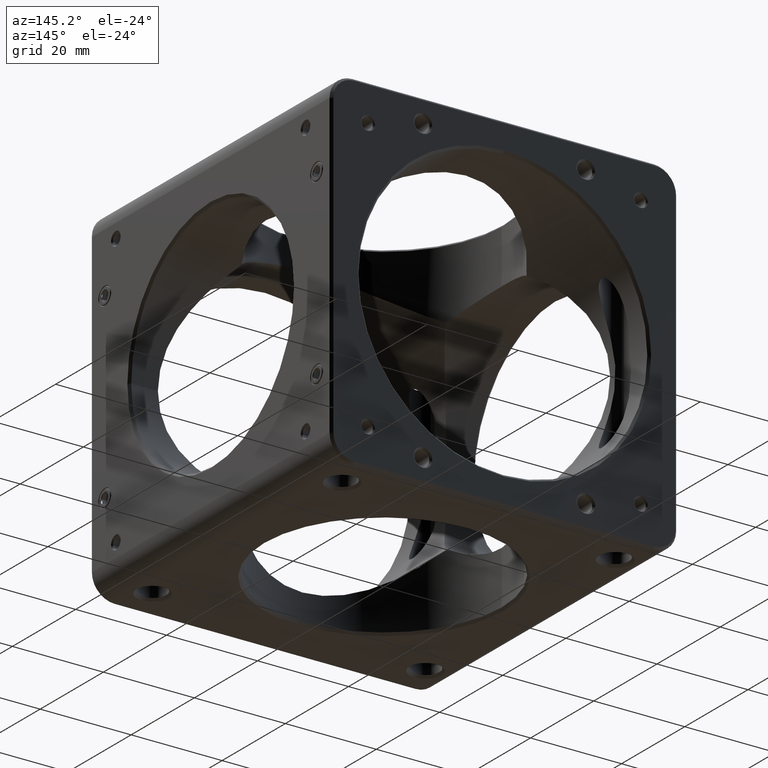
[diagram: clean part render]
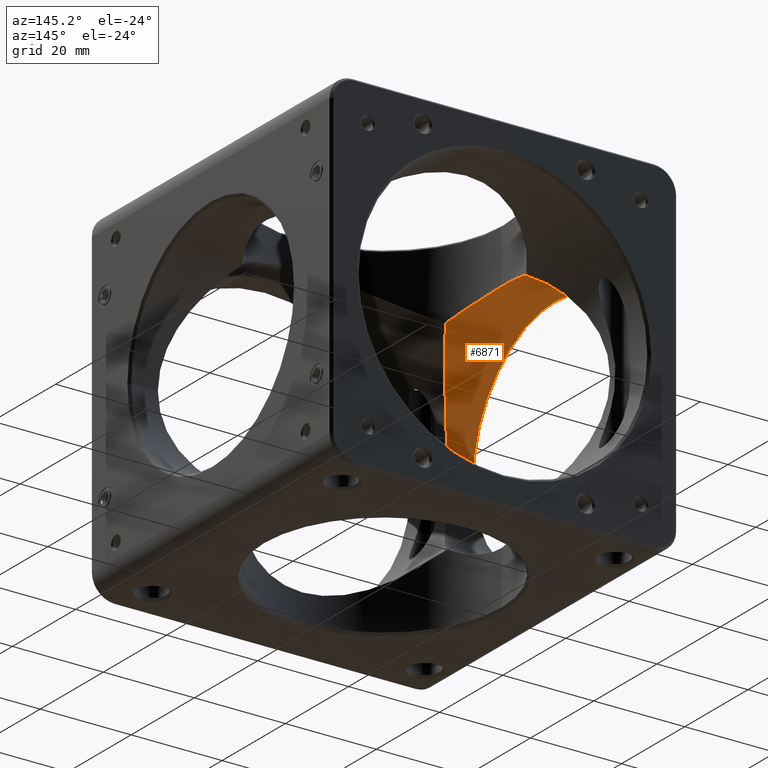
[diagram: same view with one face highlighted and labeled with its STEP entity id]
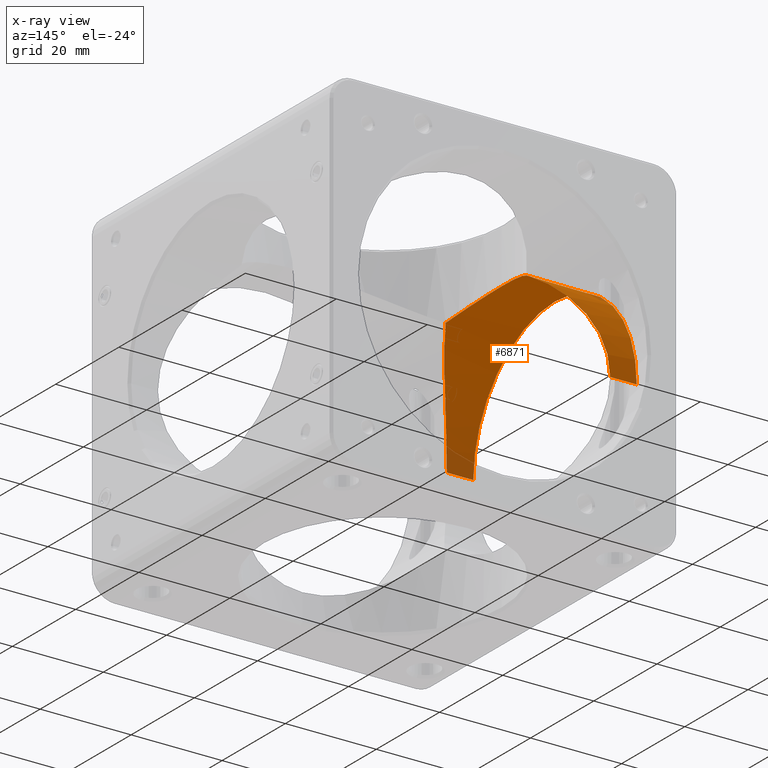
[diagram: x-ray of the same camera — body ghosted, the highlighted face saturated]
A machine part, auxiliary view. The second image highlights one B-rep face of the part: STEP entity #6871.
The next image is the same camera in x-ray: the body ghosted, the highlighted face saturated — about 5% of this face is hidden behind the body in this view.
In plain terms, the highlighted cylindrical surface (partial cylindrical patch) has radius 25.845 mm, axis along (1, 0, -0).
Its self-contained STEP definition (entity closure, byte-faithful):
#51 = CARTESIAN_POINT ( 'NONE',  ( -37.60000000000003695, 25.84499999999998465, 3.195715822375015789E-15 ) ) ;
#207 = CARTESIAN_POINT ( 'NONE',  ( -25.20073562820388346, -17.17765486716805512, 19.31802685337201098 ) ) ;
#253 = DIRECTION ( 'NONE',  ( 1.000000000000000000, 8.673617379884035472E-17, -0.0000000000000000000 ) ) ;
#289 = CARTESIAN_POINT ( 'NONE',  ( -30.67933889915975243, -24.51858729177961749, 8.258518583595494178 ) ) ;
#460 = CARTESIAN_POINT ( 'NONE',  ( -30.66518061214475566, 24.50039439633872718, 8.248455638101575005 ) ) ;
#725 = DIRECTION ( 'NONE',  ( 1.000000000000000000, 8.673617379884035472E-17, -0.0000000000000000000 ) ) ;
#901 = FACE_OUTER_BOUND ( 'NONE', #8414, .T. ) ;
#1211 = CARTESIAN_POINT ( 'NONE',  ( -22.45064030267288047, -12.80362351055356562, 22.45064030267289468 ) ) ;
#1275 = B_SPLINE_CURVE_WITH_KNOTS ( 'NONE', 3,
 ( #11073, #2858, #8302, #2032, #4794, #1494, #460, #4276, #10467, #7345, #9555, #12206, #11545, #12204, #8530, #9364, #6642, #3741, #12189, #8348, #9212, #11113, #10265, #6417 ),
 .UNSPECIFIED., .F., .F.,
 ( 4, 2, 2, 2, 2, 2, 2, 2, 2, 2, 2, 4 ),
 ( 0.0000000000000000000, 0.003613194780048903203, 0.007226389560097806405, 0.009032986950122258440, 0.01083958434014670874, 0.01445277912019561455, 0.01625937651022007352, 0.01806597390024453076, 0.02167916868029345565, 0.02348576607031791982, 0.02529236346034237706, 0.02890555824039128807 ),
 .UNSPECIFIED. ) ;
#1494 = CARTESIAN_POINT ( 'NONE',  ( -30.81147438359403878, 24.68315316707647611, 7.685172328598835811 ) ) ;
#1615 = VERTEX_POINT ( 'NONE', #4684 ) ;
#1771 = EDGE_CURVE ( 'NONE', #6288, #5005, #5755, .T. ) ;
#2032 = CARTESIAN_POINT ( 'NONE',  ( -31.40791991316456588, 25.42377880451287808, 4.798713425435072288 ) ) ;
#2110 = CARTESIAN_POINT ( 'NONE',  ( -26.82006618202550641, -19.47896384064399555, 17.02134277776624671 ) ) ;
#2113 = CARTESIAN_POINT ( 'NONE',  ( -38.10000000000001563, 25.84499999999998465, 0.0000000000000000000 ) ) ;
#2214 = DIRECTION ( 'NONE',  ( -1.000000000000000000, -8.673617379883828396E-17, -0.0000000000000000000 ) ) ;
#2325 = CARTESIAN_POINT ( 'NONE',  ( -31.47714482265131508, -25.50910768002889739, 4.196639369680048581 ) ) ;
#2365 = VERTEX_POINT ( 'NONE', #9869 ) ;
#2514 = CARTESIAN_POINT ( 'NONE',  ( -25.84499999999999886, -4.515833756748971695, 25.84500000000000242 ) ) ;
#2613 = CARTESIAN_POINT ( 'NONE',  ( -38.10000000000001563, -25.84500000000001307, 3.165099652396334369E-15 ) ) ;
#2858 = CARTESIAN_POINT ( 'NONE',  ( -31.75000000000000000, 25.84499999999998820, 1.224676417933895589 ) ) ;
#3116 = CARTESIAN_POINT ( 'NONE',  ( -27.82815909527147724, -20.84515581444831511, 15.31782038459465056 ) ) ;
#3223 = VERTEX_POINT ( 'NONE', #8005 ) ;
#3741 = CARTESIAN_POINT ( 'NONE',  ( -25.47714876875394907, 17.58020682732187012, 18.95233462615201603 ) ) ;
#3790 = ORIENTED_EDGE ( 'NONE', *, *, #10448, .T. ) ;
#3967 = CIRCLE ( 'NONE', #11943, 25.84499999999999886 ) ;
#4061 = CARTESIAN_POINT ( 'NONE',  ( -28.98278260940428908, -22.35930376035543432, 12.97466210823771071 ) ) ;
#4101 = CARTESIAN_POINT ( 'NONE',  ( -29.19982674970999881, -22.63977302385730184, 12.47940869438627765 ) ) ;
#4120 = CARTESIAN_POINT ( 'NONE',  ( -37.60000000000003695, -1.350482226047944481E-14, 0.0000000000000000000 ) ) ;
#4276 = CARTESIAN_POINT ( 'NONE',  ( -30.34784514566031177, 24.10202747873434248, 9.348722768603741073 ) ) ;
#4489 = ORIENTED_EDGE ( 'NONE', *, *, #6467, .T. ) ;
#4684 = CARTESIAN_POINT ( 'NONE',  ( -22.45064030267287691, 12.80362351055357450, 22.45064030267290178 ) ) ;
#4794 = CARTESIAN_POINT ( 'NONE',  ( -31.20692299350272947, 25.17562023141345762, 5.964542473830189095 ) ) ;
#5002 = CARTESIAN_POINT ( 'NONE',  ( -29.81075653760961330, -23.42228013605958026, 10.94050172170084245 ) ) ;
#5005 = VERTEX_POINT ( 'NONE', #7149 ) ;
#5043 = CARTESIAN_POINT ( 'NONE',  ( -24.36769228353968941, -15.93093142971328824, 20.35826459092254126 ) ) ;
#5059 = DIRECTION ( 'NONE',  ( 0.0000000000000000000, 1.000000000000000000, 0.0000000000000000000 ) ) ;
#5174 = CARTESIAN_POINT ( 'NONE',  ( -31.39199972794306248, -25.40402848044124084, 4.792058984435447755 ) ) ;
#5696 = CARTESIAN_POINT ( 'NONE',  ( -25.84500000000000242, 4.515833756748967254, 25.84500000000000597 ) ) ;
#5699 = EDGE_CURVE ( 'NONE', #9313, #3223, #6657, .T. ) ;
#5755 = LINE ( 'NONE', #2113, #10436 ) ;
#5777 = CARTESIAN_POINT ( 'NONE',  ( -24.68778618224968469, 8.880877937350268425, 24.68778618224969179 ) ) ;
#5854 = CARTESIAN_POINT ( 'NONE',  ( -24.64559999204805507, -16.35238054538106311, 20.02142948798080369 ) ) ;
#6094 = CARTESIAN_POINT ( 'NONE',  ( -31.68125123294318612, -25.76068357915687557, 2.408429583024266130 ) ) ;
#6288 = VERTEX_POINT ( 'NONE', #51 ) ;
#6310 = CARTESIAN_POINT ( 'NONE',  ( -22.45064030267288047, -12.80362351055356562, 22.45064030267289468 ) ) ;
#6417 = CARTESIAN_POINT ( 'NONE',  ( -22.45064030267287691, 12.80362351055357450, 22.45064030267290178 ) ) ;
#6467 = EDGE_CURVE ( 'NONE', #5005, #1615, #1275, .T. ) ;
#6629 =( BOUNDED_CURVE ( )  B_SPLINE_CURVE ( 3, ( #9905, #2514, #8126, #9073 ),
 .UNSPECIFIED., .F., .F. ) 
 B_SPLINE_CURVE_WITH_KNOTS ( ( 4, 4 ),
 ( 3.141592653589793116, 3.659888369675483588 ),
 .UNSPECIFIED. ) 
 CURVE ( )  GEOMETRIC_REPRESENTATION_ITEM ( )  RATIONAL_B_SPLINE_CURVE ( ( 1.000000000000000000, 0.9777391309083933724, 0.9777391309083933724, 1.000000000000000000 ) ) 
 REPRESENTATION_ITEM ( '' )  );
#6642 = CARTESIAN_POINT ( 'NONE',  ( -26.28841525642800292, 18.74274399652230727, 17.82795871582191083 ) ) ;
#6643 = B_SPLINE_CURVE_WITH_KNOTS ( 'NONE', 3,
 ( #1211, #11471, #8708, #5043, #5854, #207, #6795, #7732, #2110, #3116, #9664, #4061, #4101, #10611, #5002, #10651, #289, #7811, #11601, #5174, #2325, #6094, #9880, #6967 ),
 .UNSPECIFIED., .F., .F.,
 ( 4, 2, 2, 2, 2, 2, 2, 2, 2, 2, 2, 4 ),
 ( 0.05694417674756165754, 0.06056018692508357421, 0.06236819201384453254, 0.06417619710260549781, 0.06779220728012741448, 0.07140821745764933115, 0.07321622254641028948, 0.07502422763517124782, 0.07864023781269316449, 0.08044824290145413670, 0.08225624799021509503, 0.08587225816773699782 ),
 .UNSPECIFIED. ) ;
#6657 = LINE ( 'NONE', #2613, #11805 ) ;
#6795 = CARTESIAN_POINT ( 'NONE',  ( -25.47722627199789969, -17.58034035772328707, 18.95228748340662506 ) ) ;
#6871 = ADVANCED_FACE ( 'NONE', ( #901 ), #10758, .F. ) ;
#6967 = CARTESIAN_POINT ( 'NONE',  ( -31.75000000000000000, -25.84500000000001307, 3.165099907590964847E-15 ) ) ;
#7014 =( BOUNDED_CURVE ( )  B_SPLINE_CURVE ( 3, ( #10313, #5777, #5696, #9451 ),
 .UNSPECIFIED., .F., .F. ) 
 B_SPLINE_CURVE_WITH_KNOTS ( ( 4, 4 ),
 ( 2.623296937504102200, 3.141592653589793116 ),
 .UNSPECIFIED. ) 
 CURVE ( )  GEOMETRIC_REPRESENTATION_ITEM ( )  RATIONAL_B_SPLINE_CURVE ( ( 1.000000000000000000, 0.9777391309083932613, 0.9777391309083932613, 1.000000000000000000 ) ) 
 REPRESENTATION_ITEM ( '' )  );
#7149 = CARTESIAN_POINT ( 'NONE',  ( -31.75000000000000000, 25.84499999999998465, 0.0000000000000000000 ) ) ;
#7345 = CARTESIAN_POINT ( 'NONE',  ( -29.62765759043373492, 23.19010573124798569, 11.46773560243410373 ) ) ;
#7732 = CARTESIAN_POINT ( 'NONE',  ( -26.29250253981534513, -18.74855592096237800, 17.82217292214637538 ) ) ;
#7811 = CARTESIAN_POINT ( 'NONE',  ( -31.07203053978132345, -25.00763978245214503, 6.552254135499433474 ) ) ;
#8005 = CARTESIAN_POINT ( 'NONE',  ( -31.75000000000000000, -25.84500000000001307, 3.165099907590964847E-15 ) ) ;
#8126 = CARTESIAN_POINT ( 'NONE',  ( -24.68778618224969179, -8.880877937350268425, 24.68778618224969890 ) ) ;
#8145 = DIRECTION ( 'NONE',  ( 1.000000000000000000, 8.673617379884035472E-17, -0.0000000000000000000 ) ) ;
#8302 = CARTESIAN_POINT ( 'NONE',  ( -31.67942781422959797, 25.75844021026941988, 2.428772771221066051 ) ) ;
#8348 = CARTESIAN_POINT ( 'NONE',  ( -24.65065758853571865, 16.35997425321091470, 20.01515885522908533 ) ) ;
#8414 = EDGE_LOOP ( 'NONE', ( #12038, #3790, #11600, #4489, #9623, #11285, #9953 ) ) ;
#8428 = EDGE_CURVE ( 'NONE', #2365, #9003, #6629, .T. ) ;
#8530 = CARTESIAN_POINT ( 'NONE',  ( -27.57325328252251140, 20.49973758833558080, 15.74878060295307591 ) ) ;
#8708 = CARTESIAN_POINT ( 'NONE',  ( -23.53664722894155403, -14.63932319991023512, 21.32632633009069778 ) ) ;
#9003 = VERTEX_POINT ( 'NONE', #6310 ) ;
#9073 = CARTESIAN_POINT ( 'NONE',  ( -22.45064030267288047, -12.80362351055356562, 22.45064030267289468 ) ) ;
#9212 = CARTESIAN_POINT ( 'NONE',  ( -24.37111084454143750, 15.93618870028122281, 20.35421266974014287 ) ) ;
#9312 = EDGE_CURVE ( 'NONE', #9003, #3223, #6643, .T. ) ;
#9313 = VERTEX_POINT ( 'NONE', #10694 ) ;
#9364 = CARTESIAN_POINT ( 'NONE',  ( -26.81536996238916970, 19.47252602139041500, 17.02885733185155104 ) ) ;
#9451 = CARTESIAN_POINT ( 'NONE',  ( -25.84499999999999886, 0.0000000000000000000, 25.84500000000001307 ) ) ;
#9555 = CARTESIAN_POINT ( 'NONE',  ( -29.21529975740237717, 22.66226005122281606, 12.47675470723141977 ) ) ;
#9623 = ORIENTED_EDGE ( 'NONE', *, *, #12142, .T. ) ;
#9664 = CARTESIAN_POINT ( 'NONE',  ( -28.30880763242600295, -21.48094788469837013, 14.41520339287680308 ) ) ;
#9869 = CARTESIAN_POINT ( 'NONE',  ( -25.84499999999999886, 0.0000000000000000000, 25.84500000000001307 ) ) ;
#9880 = CARTESIAN_POINT ( 'NONE',  ( -31.74999999999999289, -25.84500000000000952, 1.208279864910176693 ) ) ;
#9905 = CARTESIAN_POINT ( 'NONE',  ( -25.84499999999999886, 0.0000000000000000000, 25.84500000000001307 ) ) ;
#9953 = ORIENTED_EDGE ( 'NONE', *, *, #9312, .T. ) ;
#10165 = DIRECTION ( 'NONE',  ( 0.0000000000000000000, 1.000000000000000000, 0.0000000000000000000 ) ) ;
#10265 = CARTESIAN_POINT ( 'NONE',  ( -22.98493869471641204, 13.74049431155596501, 21.91634191062936665 ) ) ;
#10313 = CARTESIAN_POINT ( 'NONE',  ( -22.45064030267287691, 12.80362351055357450, 22.45064030267290178 ) ) ;
#10436 = VECTOR ( 'NONE', #253, 1000.000000000000000 ) ;
#10448 = EDGE_CURVE ( 'NONE', #9313, #6288, #3967, .T. ) ;
#10467 = CARTESIAN_POINT ( 'NONE',  ( -30.17652313010645670, 23.88607166016355876, 9.886915106036852308 ) ) ;
#10611 = CARTESIAN_POINT ( 'NONE',  ( -29.61487852245521779, -23.17262329255099118, 11.45968994671424923 ) ) ;
#10651 = CARTESIAN_POINT ( 'NONE',  ( -30.36139843612242473, -24.12048809014117978, 9.354203230191101781 ) ) ;
#10694 = CARTESIAN_POINT ( 'NONE',  ( -37.60000000000003695, -25.84500000000001307, 0.0000000000000000000 ) ) ;
#10758 = CYLINDRICAL_SURFACE ( 'NONE', #11430, 25.84499999999999886 ) ;
#11073 = CARTESIAN_POINT ( 'NONE',  ( -31.75000000000000000, 25.84499999999998465, 0.0000000000000000000 ) ) ;
#11113 = CARTESIAN_POINT ( 'NONE',  ( -23.53638018001869270, 14.63901919373566507, 21.32677605334111703 ) ) ;
#11285 = ORIENTED_EDGE ( 'NONE', *, *, #8428, .T. ) ;
#11430 = AXIS2_PLACEMENT_3D ( 'NONE', #12017, #725, #10165 ) ;
#11471 = CARTESIAN_POINT ( 'NONE',  ( -22.98591824047181831, -13.74221190575080875, 21.91536236487396749 ) ) ;
#11545 = CARTESIAN_POINT ( 'NONE',  ( -28.30202799875627306, 21.46975527816497475, 14.39870154176403005 ) ) ;
#11600 = ORIENTED_EDGE ( 'NONE', *, *, #1771, .T. ) ;
#11601 = CARTESIAN_POINT ( 'NONE',  ( -31.18885488901299752, -25.15256816716342669, 5.973006524487933788 ) ) ;
#11805 = VECTOR ( 'NONE', #8145, 1000.000000000000000 ) ;
#11943 = AXIS2_PLACEMENT_3D ( 'NONE', #4120, #2214, #5059 ) ;
#12017 = CARTESIAN_POINT ( 'NONE',  ( -38.10000000000001563, -1.354819034737886499E-14, 0.0000000000000000000 ) ) ;
#12038 = ORIENTED_EDGE ( 'NONE', *, *, #5699, .F. ) ;
#12142 = EDGE_CURVE ( 'NONE', #1615, #2365, #7014, .T. ) ;
#12189 = CARTESIAN_POINT ( 'NONE',  ( -25.20325520636562899, 17.18132448374358390, 19.31469467918383032 ) ) ;
#12204 = CARTESIAN_POINT ( 'NONE',  ( -27.82046359999598550, 20.83083766392053349, 15.30846824514066107 ) ) ;
#12206 = CARTESIAN_POINT ( 'NONE',  ( -28.53693818947687433, 21.77829326780719654, 13.92805875758719480 ) ) ;